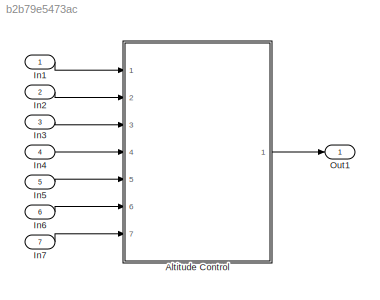
MODEL slx_b2b79e5473ac
KIND model
CONFIG AbsTol = auto
CONFIG EnableMultiTasking = off
CONFIG FixedStep = 2.000000
CONFIG MaxStep = auto
CONFIG MinStep = auto
CONFIG RelTol = 1e-3
CONFIG SampleTimeConstraint = Unconstrained
CONFIG Solver = FixedStepDiscrete
CONFIG SolverName = FixedStepDiscrete
CONFIG StartTime = 0.0
CONFIG StopTime = 100.0
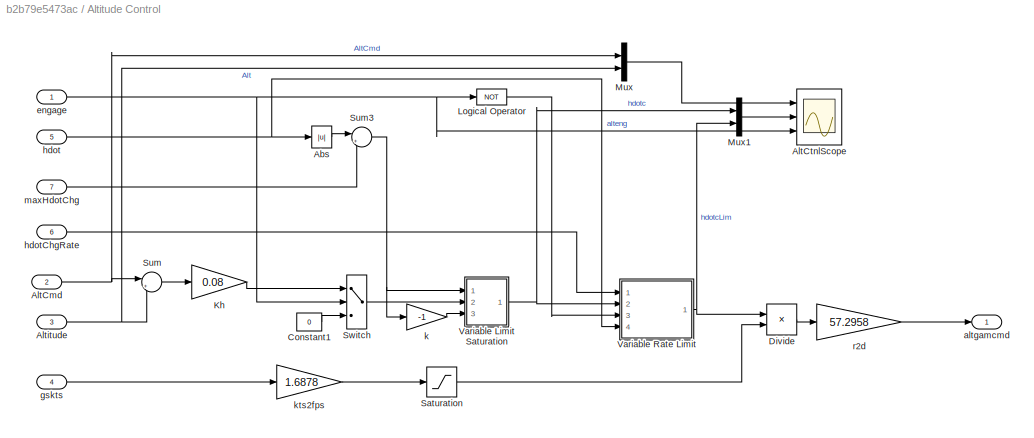
BLOCK [SubSystem] Altitude Control
  Ports = [7, 1]
  RequestExecContextInheritance = off
  Variant = off
BLOCK [Abs] Altitude Control/Abs
BLOCK [Inport] Altitude Control/AltCmd
  IconDisplay = Port number
  Port = 2
BLOCK [Scope] Altitude Control/AltCtnlScope
  NumInputPorts = 3
  Ports = [3]
  ScopeSpecificationString = C++SS(StrPVP('Open','off'),StrPVP('TimeRange','30'),StrPVP('TickLabels','OneTimeTick'),StrPVP('ShowLegends','off'),StrPVP('LimitDataPoints','off'),StrPVP('MaxDataPoints','5000'),StrPVP('SaveToWorkspace','off'),StrPVP('SaveName','ScopeData3'),StrPVP('YMin','10000~-5~0'),StrPVP('YMax','10200~15~1'),StrPVP('BlockParamSampleInput','off'),StrPVP('BlockParamSampleTime','-1'),StrPVP('ZoomMode','on'),StrP...<+646ch>
BLOCK [Inport] Altitude Control/Altitude
  IconDisplay = Port number
  Port = 3
BLOCK [Constant] Altitude Control/Constant1
  Value = 0
BLOCK [Product] Altitude Control/Divide
  InputSameDT = off
  Inputs = */
  OutDataTypeStr = Inherit: Inherit via internal rule
  Ports = [2, 1]
  RndMeth = Floor
  SaturateOnIntegerOverflow = off
BLOCK [Gain] Altitude Control/Kh
  Gain = 0.08
  OutDataTypeStr = Inherit: Inherit via internal rule
  ParamDataTypeStr = Inherit: Inherit via internal rule
  SaturateOnIntegerOverflow = off
BLOCK [Logic] Altitude Control/Logical Operator
  Operator = NOT
  Ports = [1, 1]
BLOCK [Mux] Altitude Control/Mux
  DisplayOption = bar
  Inputs = 2
  Ports = [2, 1]
BLOCK [Mux] Altitude Control/Mux1
  DisplayOption = bar
  Inputs = 2
  Ports = [2, 1]
BLOCK [Saturate] Altitude Control/Saturation
  InputPortMap = u0
  LowerLimit = 0.0001
  Ports = [1, 1]
  UpperLimit = 1000
BLOCK [Sum] Altitude Control/Sum
  IconShape = round
  InputSameDT = off
  Inputs = |+-
  OutDataTypeStr = Inherit: Inherit via internal rule
  Ports = [2, 1]
  SaturateOnIntegerOverflow = off
BLOCK [Sum] Altitude Control/Sum3
  IconShape = round
  Inputs = |++
  Ports = [2, 1]
BLOCK [Switch] Altitude Control/Switch
  InputSameDT = off
  SaturateOnIntegerOverflow = off
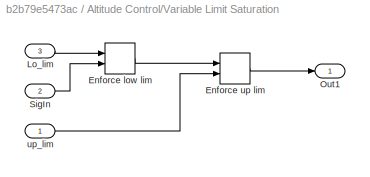
BLOCK [SubSystem] Altitude Control/Variable Limit Saturation
  Ports = [3, 1]
  RequestExecContextInheritance = off
  Variant = off
BLOCK [MinMax] Altitude Control/Variable Limit Saturation/Enforce low lim
  Function = max
  InputSameDT = off
  Inputs = 2
  Ports = [2, 1]
  SaturateOnIntegerOverflow = off
BLOCK [MinMax] Altitude Control/Variable Limit Saturation/Enforce up lim
  InputSameDT = off
  Inputs = 2
  Ports = [2, 1]
  SaturateOnIntegerOverflow = off
BLOCK [Inport] Altitude Control/Variable Limit Saturation/Lo_lim
  IconDisplay = Port number
  Port = 3
BLOCK [Outport] Altitude Control/Variable Limit Saturation/Out1
  IconDisplay = Port number
BLOCK [Inport] Altitude Control/Variable Limit Saturation/SigIn
  IconDisplay = Port number
  Port = 2
BLOCK [Inport] Altitude Control/Variable Limit Saturation/up_lim
  IconDisplay = Port number
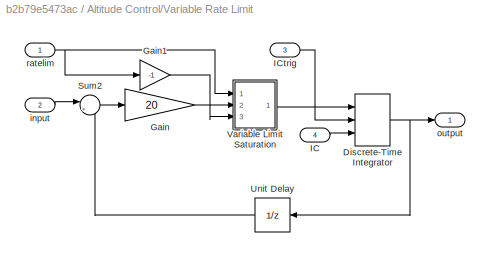
BLOCK [SubSystem] Altitude Control/Variable Rate Limit
  Ports = [4, 1]
  RequestExecContextInheritance = off
  Variant = off
BLOCK [DiscreteIntegrator] Altitude Control/Variable Rate Limit/Discrete-Time Integrator
  ExternalReset = level
  ICPrevOutput = DiscIntNeverNeededParam
  ICPrevScaledInput = DiscIntNeverNeededParam
  InitialConditionSetting = State (most efficient)
  InitialConditionSource = external
  Ports = [3, 1]
  SampleTime = -1
BLOCK [Gain] Altitude Control/Variable Rate Limit/Gain
  Gain = 20
BLOCK [Gain] Altitude Control/Variable Rate Limit/Gain1
  Gain = -1
BLOCK [Inport] Altitude Control/Variable Rate Limit/IC
  IconDisplay = Port number
  Port = 4
BLOCK [Inport] Altitude Control/Variable Rate Limit/ICtrig
  IconDisplay = Port number
  Port = 3
BLOCK [Sum] Altitude Control/Variable Rate Limit/Sum2
  IconShape = round
  InputSameDT = off
  Inputs = |+-
  OutDataTypeStr = Inherit: Inherit via internal rule
  Ports = [2, 1]
BLOCK [UnitDelay] Altitude Control/Variable Rate Limit/Unit Delay
  InputProcessing = Elements as channels (sample based)
  SampleTime = -1
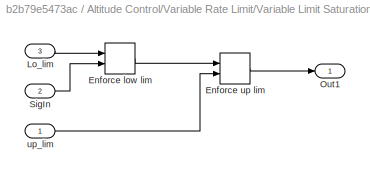
BLOCK [SubSystem] Altitude Control/Variable Rate Limit/Variable Limit Saturation
  Ports = [3, 1]
  RequestExecContextInheritance = off
  Variant = off
BLOCK [MinMax] Altitude Control/Variable Rate Limit/Variable Limit Saturation/Enforce low lim
  Function = max
  InputSameDT = off
  Inputs = 2
  Ports = [2, 1]
  SaturateOnIntegerOverflow = off
BLOCK [MinMax] Altitude Control/Variable Rate Limit/Variable Limit Saturation/Enforce up lim
  InputSameDT = off
  Inputs = 2
  Ports = [2, 1]
  SaturateOnIntegerOverflow = off
BLOCK [Inport] Altitude Control/Variable Rate Limit/Variable Limit Saturation/Lo_lim
  IconDisplay = Port number
  Port = 3
BLOCK [Outport] Altitude Control/Variable Rate Limit/Variable Limit Saturation/Out1
  IconDisplay = Port number
BLOCK [Inport] Altitude Control/Variable Rate Limit/Variable Limit Saturation/SigIn
  IconDisplay = Port number
  Port = 2
BLOCK [Inport] Altitude Control/Variable Rate Limit/Variable Limit Saturation/up_lim
  IconDisplay = Port number
BLOCK [Inport] Altitude Control/Variable Rate Limit/input
  IconDisplay = Port number
  Port = 2
BLOCK [Outport] Altitude Control/Variable Rate Limit/output
  IconDisplay = Port number
BLOCK [Inport] Altitude Control/Variable Rate Limit/ratelim
  IconDisplay = Port number
BLOCK [Outport] Altitude Control/altgamcmd
  IconDisplay = Port number
BLOCK [Inport] Altitude Control/engage
  IconDisplay = Port number
BLOCK [Inport] Altitude Control/gskts
  IconDisplay = Port number
  Port = 4
BLOCK [Inport] Altitude Control/hdot
  IconDisplay = Port number
  Port = 5
BLOCK [Inport] Altitude Control/hdotChgRate
  IconDisplay = Port number
  Port = 6
BLOCK [Gain] Altitude Control/k
  Gain = -1
  OutDataTypeStr = Inherit: Inherit via internal rule
  ParamDataTypeStr = Inherit: Inherit via internal rule
  SaturateOnIntegerOverflow = off
BLOCK [Gain] Altitude Control/kts2fps
  Gain = 1.6878
  OutDataTypeStr = Inherit: Inherit via internal rule
  ParamDataTypeStr = Inherit: Inherit via internal rule
  SaturateOnIntegerOverflow = off
BLOCK [Inport] Altitude Control/maxHdotChg
  IconDisplay = Port number
  Port = 7
BLOCK [Gain] Altitude Control/r2d
  Gain = 57.2958
  OutDataTypeStr = Inherit: Inherit via internal rule
  ParamDataTypeStr = Inherit: Inherit via internal rule
  SaturateOnIntegerOverflow = off
BLOCK [Inport] In1
  IconDisplay = Port number
BLOCK [Inport] In2
  IconDisplay = Port number
  Port = 2
BLOCK [Inport] In3
  IconDisplay = Port number
  Port = 3
BLOCK [Inport] In4
  IconDisplay = Port number
  Port = 4
BLOCK [Inport] In5
  IconDisplay = Port number
  Port = 5
BLOCK [Inport] In6
  IconDisplay = Port number
  Port = 6
BLOCK [Inport] In7
  IconDisplay = Port number
  Port = 7
BLOCK [Outport] Out1
  IconDisplay = Port number
LINE Altitude Control/Abs:1 -> Altitude Control/Sum3:1
NET Altitude Control/AltCmd:1 -> Altitude Control/Mux:1, Altitude Control/Sum:1
NET Altitude Control/Altitude:1 -> Altitude Control/Mux:2, Altitude Control/Sum:2
LINE Altitude Control/Constant1:1 -> Altitude Control/Switch:3
LINE Altitude Control/Divide:1 -> Altitude Control/r2d:1
LINE Altitude Control/Kh:1 -> Altitude Control/Switch:1
LINE Altitude Control/Logical Operator:1 -> Altitude Control/Variable Rate Limit:3
LINE Altitude Control/Mux1:1 -> Altitude Control/AltCtnlScope:2
LINE Altitude Control/Mux:1 -> Altitude Control/AltCtnlScope:1
LINE Altitude Control/Saturation:1 -> Altitude Control/Divide:2
NET Altitude Control/Sum3:1 -> Altitude Control/Variable Limit Saturation:1, Altitude Control/k:1
LINE Altitude Control/Sum:1 -> Altitude Control/Kh:1
LINE Altitude Control/Switch:1 -> Altitude Control/Variable Limit Saturation:2
LINE Altitude Control/Variable Limit Saturation/Enforce low lim:1 -> Altitude Control/Variable Limit Saturation/Enforce up lim:1
LINE Altitude Control/Variable Limit Saturation/Enforce up lim:1 -> Altitude Control/Variable Limit Saturation/Out1:1
LINE Altitude Control/Variable Limit Saturation/Lo_lim:1 -> Altitude Control/Variable Limit Saturation/Enforce low lim:1
LINE Altitude Control/Variable Limit Saturation/SigIn:1 -> Altitude Control/Variable Limit Saturation/Enforce low lim:2
LINE Altitude Control/Variable Limit Saturation/up_lim:1 -> Altitude Control/Variable Limit Saturation/Enforce up lim:2
NET Altitude Control/Variable Limit Saturation:1 -> Altitude Control/Mux1:1, Altitude Control/Variable Rate Limit:2
NET Altitude Control/Variable Rate Limit/Discrete-Time Integrator:1 -> Altitude Control/Variable Rate Limit/Unit Delay:1, Altitude Control/Variable Rate Limit/output:1
LINE Altitude Control/Variable Rate Limit/Gain1:1 -> Altitude Control/Variable Rate Limit/Variable Limit Saturation:3
LINE Altitude Control/Variable Rate Limit/Gain:1 -> Altitude Control/Variable Rate Limit/Variable Limit Saturation:2
LINE Altitude Control/Variable Rate Limit/IC:1 -> Altitude Control/Variable Rate Limit/Discrete-Time Integrator:3
LINE Altitude Control/Variable Rate Limit/ICtrig:1 -> Altitude Control/Variable Rate Limit/Discrete-Time Integrator:2
LINE Altitude Control/Variable Rate Limit/Sum2:1 -> Altitude Control/Variable Rate Limit/Gain:1
LINE Altitude Control/Variable Rate Limit/Unit Delay:1 -> Altitude Control/Variable Rate Limit/Sum2:2
LINE Altitude Control/Variable Rate Limit/Variable Limit Saturation/Enforce low lim:1 -> Altitude Control/Variable Rate Limit/Variable Limit Saturation/Enforce up lim:1
LINE Altitude Control/Variable Rate Limit/Variable Limit Saturation/Enforce up lim:1 -> Altitude Control/Variable Rate Limit/Variable Limit Saturation/Out1:1
LINE Altitude Control/Variable Rate Limit/Variable Limit Saturation/Lo_lim:1 -> Altitude Control/Variable Rate Limit/Variable Limit Saturation/Enforce low lim:1
LINE Altitude Control/Variable Rate Limit/Variable Limit Saturation/SigIn:1 -> Altitude Control/Variable Rate Limit/Variable Limit Saturation/Enforce low lim:2
LINE Altitude Control/Variable Rate Limit/Variable Limit Saturation/up_lim:1 -> Altitude Control/Variable Rate Limit/Variable Limit Saturation/Enforce up lim:2
LINE Altitude Control/Variable Rate Limit/Variable Limit Saturation:1 -> Altitude Control/Variable Rate Limit/Discrete-Time Integrator:1
LINE Altitude Control/Variable Rate Limit/input:1 -> Altitude Control/Variable Rate Limit/Sum2:1
NET Altitude Control/Variable Rate Limit/ratelim:1 -> Altitude Control/Variable Rate Limit/Gain1:1, Altitude Control/Variable Rate Limit/Variable Limit Saturation:1
NET Altitude Control/Variable Rate Limit:1 -> Altitude Control/Divide:1, Altitude Control/Mux1:2
NET Altitude Control/engage:1 -> Altitude Control/AltCtnlScope:3, Altitude Control/Logical Operator:1, Altitude Control/Switch:2
LINE Altitude Control/gskts:1 -> Altitude Control/kts2fps:1
NET Altitude Control/hdot:1 -> Altitude Control/Abs:1, Altitude Control/Variable Rate Limit:4
LINE Altitude Control/hdotChgRate:1 -> Altitude Control/Variable Rate Limit:1
LINE Altitude Control/k:1 -> Altitude Control/Variable Limit Saturation:3
LINE Altitude Control/kts2fps:1 -> Altitude Control/Saturation:1
LINE Altitude Control/maxHdotChg:1 -> Altitude Control/Sum3:2
LINE Altitude Control/r2d:1 -> Altitude Control/altgamcmd:1
LINE Altitude Control:1 -> Out1:1
LINE In1:1 -> Altitude Control:1
LINE In2:1 -> Altitude Control:2
LINE In3:1 -> Altitude Control:3
LINE In4:1 -> Altitude Control:4
LINE In5:1 -> Altitude Control:5
LINE In6:1 -> Altitude Control:6
LINE In7:1 -> Altitude Control:7
note: NET lines group one-source signal fan-out (src -> all destinations, sorted); 1:1 wires keep LINE
